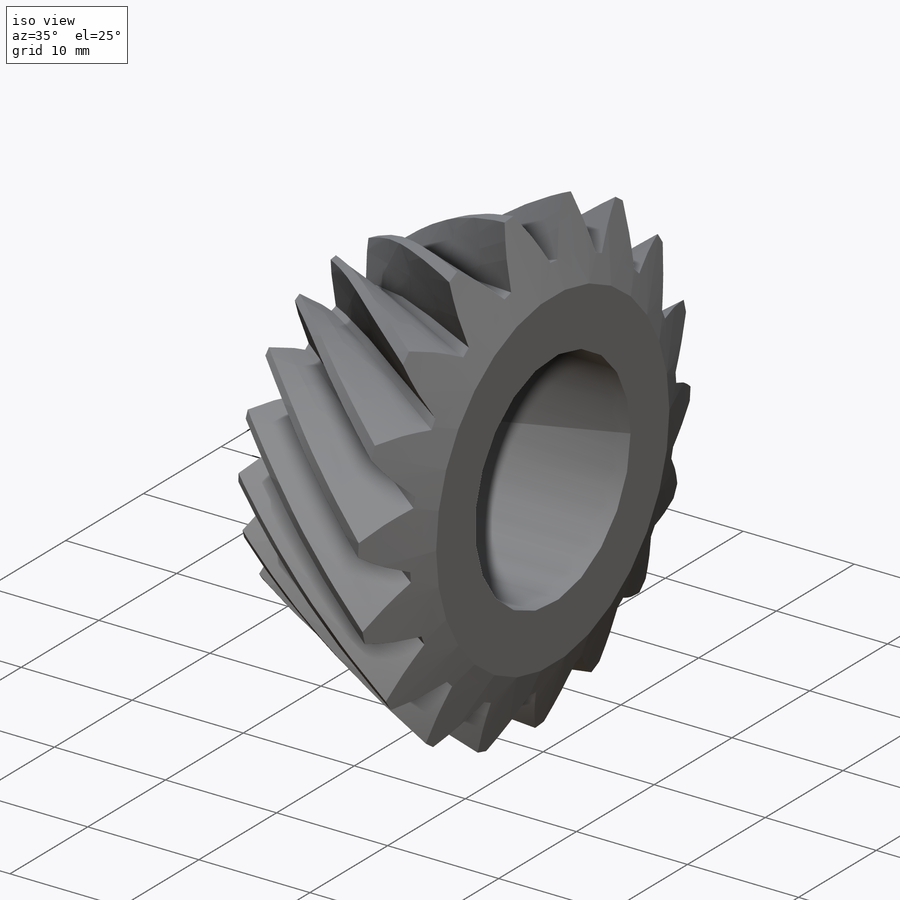
[diagram: iso view]
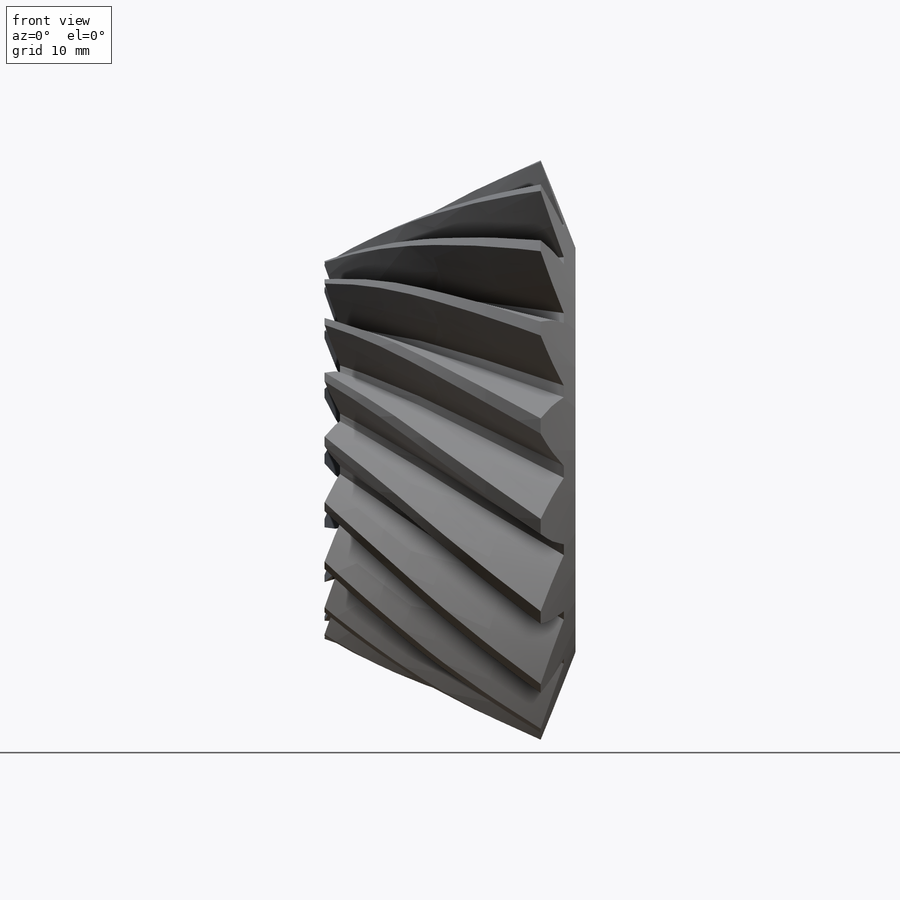
[diagram: front view]
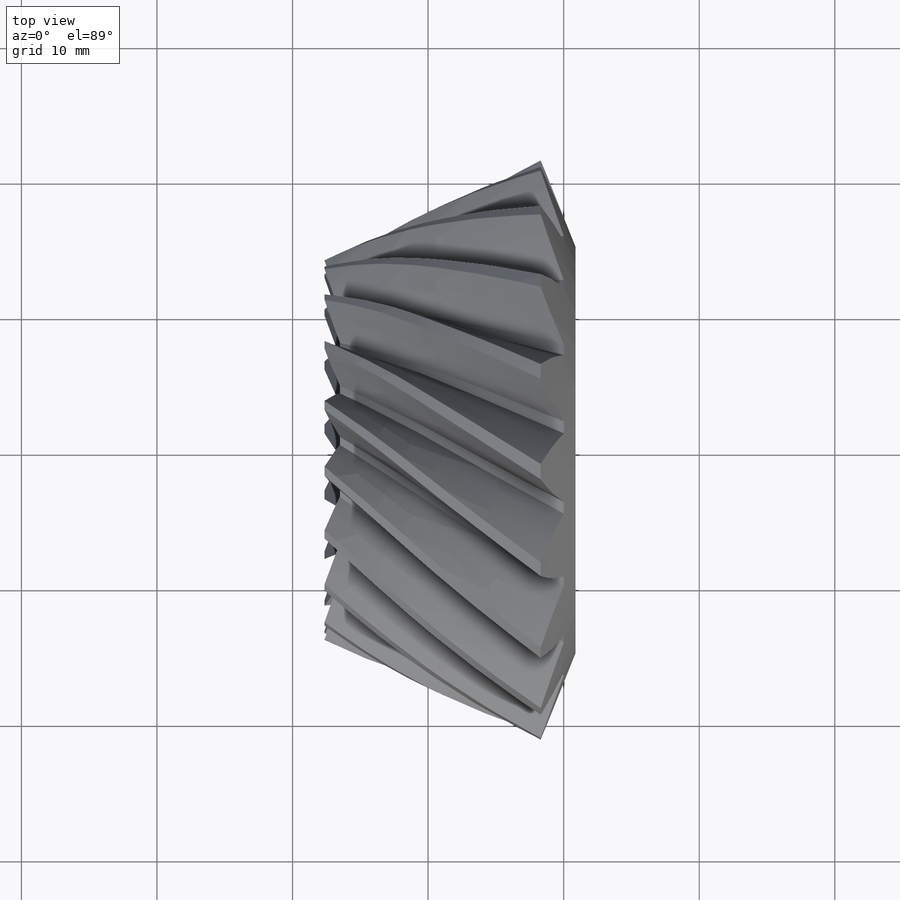
[diagram: top view]
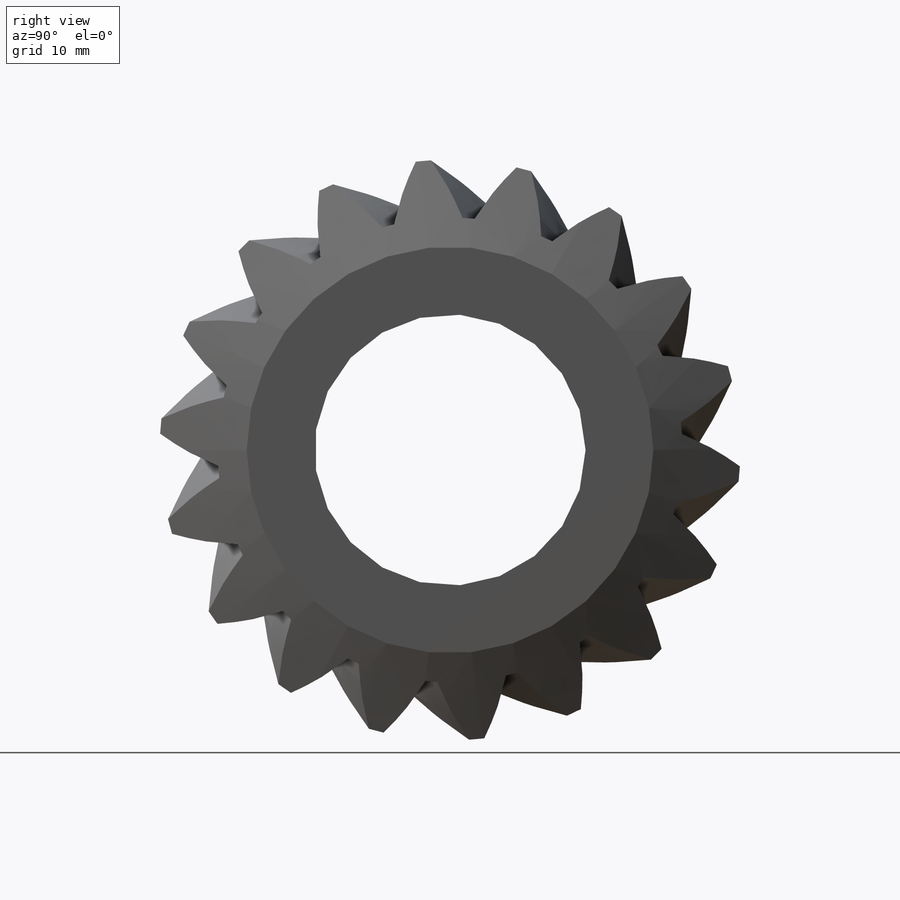
[diagram: right view]
SOLIDWORKS PART (.sldprt)
format: sldprt  version: not decoded by parser v0  size: 638,976 bytes
history: native  units: mm
features: plane x35, sketch x7, material x1, revolve x1, pattern_circular x1, cut_extrude x1 + 22 further entries (+13 scaffold rows collapsed)
feature tree (81):
  scaffold x13  (default folders/planes/origin — collapsed)
  material  "Material <not specified>"
  "Axis2"
  plane  "Plane1"
  "Axis3"
  sketch  "Sketch1"  dims[c1.D1=~221.321372mm c1.D2=~12.055515mm c1.D3=117.0mm c1.D4=~18.428579mm c1.D5=~13.62101mm c1.D6=~27.642719mm c1.D7=~94.651538mm c2.D7=~21.801409deg]
  revolve  "Base-Revolve"  Angle=360deg
  plane  "Plane2"
  plane  "Plane3"
  plane  "Plane36"
  "Axis4"
  "Axis20"
  plane  "Plane37"
  plane  "Plane38"  Offset=30.714299mm
  "Axis21"
  plane  "Plane40"  Offset=22.188417mm
  "Axis23"
  sketch  "Sketch2"  dims[c1.D3=~32.352268mm c1.D1=~2.984007mm c1.D2=~22.188417mm c1.D4=~12.940907mm c1.D5=~9.376212mm c2.D3=~11.273964mm]
  plane  "Plane4"
  plane  "Plane5"
  plane  "Plane6"  Offset=29.25mm
  "Axis5"
  plane  "Plane8"
  "Axis6"
  plane  "Plane34"
  plane  "Plane35"  Offset=28.058855mm
  "Axis19"
  plane  "Plane41"  Offset=20.270089mm
  "Axis24"
  sketch  "Sketch3"  dims[c1.D1=~29.926134mm c1.D2=~2.726021mm c1.D3=~20.270089mm c1.D4=~11.970454mm c1.D5=~8.673079mm c2.D4=~11.970454mm c2.D1=~10.299259mm]
  plane  "Plane9"
  plane  "Plane10"
  plane  "Plane11"  Offset=58.5mm
  plane  "Plane12"
  "Axis7"
  "Axis8"
  plane  "Plane32"
  plane  "Plane33"  Offset=25.403412mm
  "Axis18"
  plane  "Plane42"  Offset=18.351762mm
  "Axis25"
  sketch  "Sketch4"  dims[c1.D3=27.5mm c1.D1=~2.468035mm c1.D2=~18.351762mm c1.D4=11.0mm c1.D5=~7.969947mm c2.D3=~9.324554mm]
  plane  "Plane13"
  plane  "Plane14"
  plane  "Plane15"  Offset=87.75mm
  plane  "Plane16"
  "Axis9"
  "Axis10"
  plane  "Plane30"
  plane  "Plane31"  Offset=22.747969mm
  "Axis17"
  plane  "Plane43"  Offset=16.433434mm
  "Axis26"
  sketch  "Sketch5"  dims[c1.D3=~25.073866mm c1.D1=~16.433434mm c1.D2=~2.42852mm c2.D2=90.0deg c3.D2=~2.42852mm c4.D2=90.0deg c5.D2=~2.210049mm c5.D4=~10.029546mm c5.D5=~7.266814mm c5.D3=~8.34985mm]
  plane  "Plane17"
  plane  "Plane18"
  plane  "Plane19"  Offset=119.34mm
  plane  "Plane20"
  "Axis11"
  "Axis12"
  plane  "Plane28"
  plane  "Plane29"  Offset=20.092525mm
  "Axis16"
  plane  "Plane44"  Offset=14.515107mm
  "Axis27"
  sketch  "Sketch6"  dims[c1.D3=~22.647732mm c1.D1=~14.515107mm c1.D2=~1.952063mm c1.D4=~9.059093mm c1.D5=~6.563681mm c2.D3=~7.375145mm]
  pattern_circular  "CirPattern1"  Count=18 Angle=360deg
  sketch  "Sketch7"  dims[D1=~10.603229mm]
  cut_extrude  "Cut-Extrude1"  Depth=20mm
decode coverage: 10 of 10 modeling features carry decoded parameters; 22 rows unclassified (native names shown)
note: ~ marks probable driven/reference dimensions
note: suppression state not decoded; provenance and decode notes live in map.json
